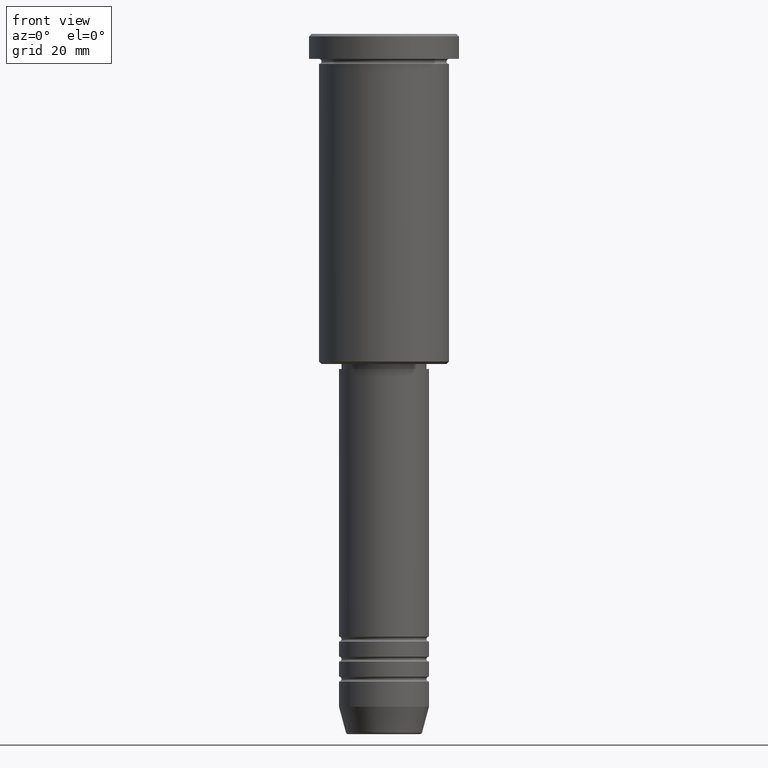
[diagram: clean part render]
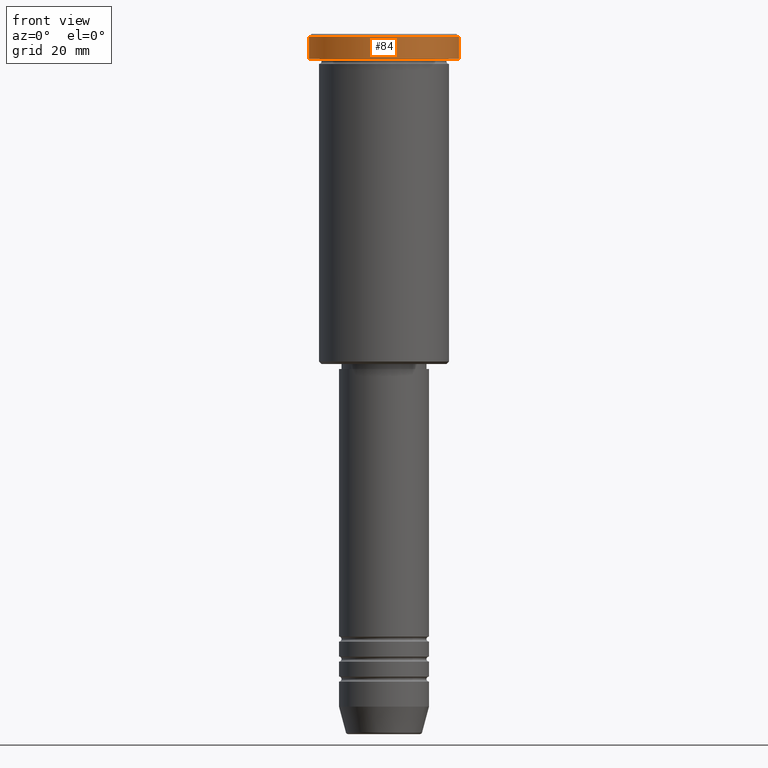
[diagram: same view with one face highlighted and labeled with its STEP entity id]
A machine part, front view. The second image highlights one B-rep face of the part: STEP entity #84.
In plain terms, the highlighted cylindrical surface (partial cylindrical patch) has radius 15 mm, axis along (-0, -0, 1).
Its self-contained STEP definition (entity closure, byte-faithful):
#17 = LINE ( 'NONE', #997, #418 ) ;
#44 = VERTEX_POINT ( 'NONE', #304 ) ;
#80 = CIRCLE ( 'NONE', #746, 15.00000000000000000 ) ;
#84 = ADVANCED_FACE ( 'NONE', ( #1029 ), #662, .T. ) ;
#95 = DIRECTION ( 'NONE',  ( 0.000000000000000000, 0.000000000000000000, -1.000000000000000000 ) ) ;
#132 = ORIENTED_EDGE ( 'NONE', *, *, #964, .T. ) ;
#144 = ORIENTED_EDGE ( 'NONE', *, *, #378, .T. ) ;
#209 = CARTESIAN_POINT ( 'NONE',  ( 15.00000000000000000, 0.000000000000000000, -0.4999999999999970024 ) ) ;
#215 = CARTESIAN_POINT ( 'NONE',  ( 0.000000000000000000, 0.000000000000000000, 0.000000000000000000 ) ) ;
#233 = CARTESIAN_POINT ( 'NONE',  ( 15.00000000000000000, 0.000000000000000000, -4.999999999999999112 ) ) ;
#282 = DIRECTION ( 'NONE',  ( -0.000000000000000000, -0.000000000000000000, 1.000000000000000000 ) ) ;
#300 = DIRECTION ( 'NONE',  ( 1.000000000000000000, 0.000000000000000000, 0.000000000000000000 ) ) ;
#304 = CARTESIAN_POINT ( 'NONE',  ( -15.00000000000000000, 1.836970198721029589E-15, -0.4999999999999970024 ) ) ;
#378 = EDGE_CURVE ( 'NONE', #1175, #761, #17, .T. ) ;
#390 = CARTESIAN_POINT ( 'NONE',  ( 0.000000000000000000, 0.000000000000000000, -4.999999999999999112 ) ) ;
#418 = VECTOR ( 'NONE', #282, 1000.000000000000000 ) ;
#424 = CARTESIAN_POINT ( 'NONE',  ( -15.00000000000000000, 1.836970198721029589E-15, -4.999999999999999112 ) ) ;
#431 = EDGE_LOOP ( 'NONE', ( #704, #132, #144, #1051 ) ) ;
#464 = CARTESIAN_POINT ( 'NONE',  ( 0.000000000000000000, 0.000000000000000000, -0.4999999999999970024 ) ) ;
#622 = CARTESIAN_POINT ( 'NONE',  ( -15.00000000000000000, 1.836970198721029589E-15, 0.000000000000000000 ) ) ;
#662 = CYLINDRICAL_SURFACE ( 'NONE', #961, 15.00000000000000000 ) ;
#680 = DIRECTION ( 'NONE',  ( 1.000000000000000000, 0.000000000000000000, 0.000000000000000000 ) ) ;
#704 = ORIENTED_EDGE ( 'NONE', *, *, #1083, .F. ) ;
#746 = AXIS2_PLACEMENT_3D ( 'NONE', #464, #95, #300 ) ;
#761 = VERTEX_POINT ( 'NONE', #209 ) ;
#763 = DIRECTION ( 'NONE',  ( -0.000000000000000000, -0.000000000000000000, 1.000000000000000000 ) ) ;
#793 = DIRECTION ( 'NONE',  ( -0.000000000000000000, -0.000000000000000000, 1.000000000000000000 ) ) ;
#850 = EDGE_CURVE ( 'NONE', #761, #44, #80, .T. ) ;
#854 = AXIS2_PLACEMENT_3D ( 'NONE', #390, #763, #680 ) ;
#890 = LINE ( 'NONE', #622, #1042 ) ;
#953 = DIRECTION ( 'NONE',  ( 1.000000000000000000, 0.000000000000000000, 0.000000000000000000 ) ) ;
#961 = AXIS2_PLACEMENT_3D ( 'NONE', #215, #1134, #953 ) ;
#964 = EDGE_CURVE ( 'NONE', #1126, #1175, #1182, .T. ) ;
#997 = CARTESIAN_POINT ( 'NONE',  ( 15.00000000000000000, 0.000000000000000000, 0.000000000000000000 ) ) ;
#1029 = FACE_OUTER_BOUND ( 'NONE', #431, .T. ) ;
#1042 = VECTOR ( 'NONE', #793, 1000.000000000000000 ) ;
#1051 = ORIENTED_EDGE ( 'NONE', *, *, #850, .T. ) ;
#1083 = EDGE_CURVE ( 'NONE', #1126, #44, #890, .T. ) ;
#1126 = VERTEX_POINT ( 'NONE', #424 ) ;
#1134 = DIRECTION ( 'NONE',  ( -0.000000000000000000, -0.000000000000000000, 1.000000000000000000 ) ) ;
#1175 = VERTEX_POINT ( 'NONE', #233 ) ;
#1182 = CIRCLE ( 'NONE', #854, 15.00000000000000000 ) ;